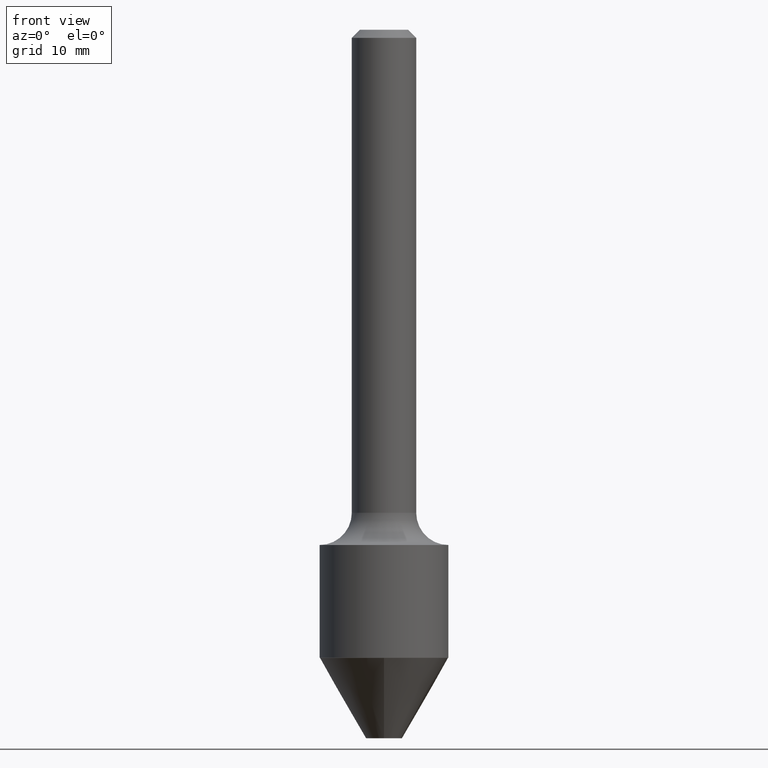
[diagram: clean part render]
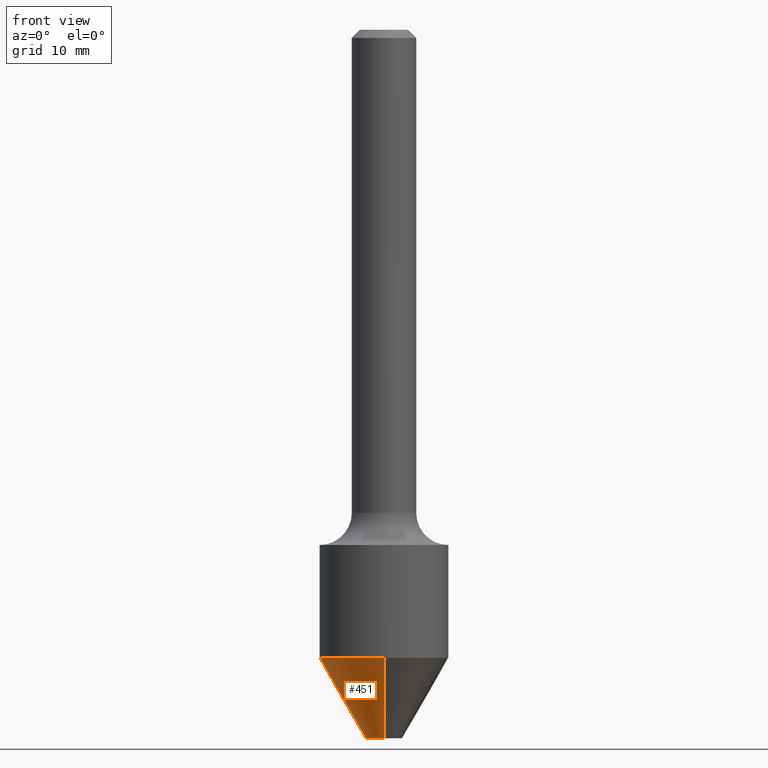
[diagram: same view with one face highlighted and labeled with its STEP entity id]
A machine part, front view. The second image highlights one B-rep face of the part: STEP entity #451.
In plain terms, the highlighted conical surface has half-angle 30 deg.
Its self-contained STEP definition (entity closure, byte-faithful):
#18 = DIRECTION ( 'NONE',  ( -6.982962677686265922E-15, -1.000000000000000000, 0.000000000000000000 ) ) ;
#29 = VERTEX_POINT ( 'NONE', #447 ) ;
#32 = AXIS2_PLACEMENT_3D ( 'NONE', #200, #165, #325 ) ;
#42 = ORIENTED_EDGE ( 'NONE', *, *, #225, .F. ) ;
#51 = VECTOR ( 'NONE', #320, 39.37007874015748143 ) ;
#65 = LINE ( 'NONE', #497, #297 ) ;
#68 = VERTEX_POINT ( 'NONE', #478 ) ;
#71 = ORIENTED_EDGE ( 'NONE', *, *, #112, .T. ) ;
#72 = EDGE_CURVE ( 'NONE', #29, #471, #162, .T. ) ;
#112 = EDGE_CURVE ( 'NONE', #68, #29, #467, .T. ) ;
#119 = FACE_OUTER_BOUND ( 'NONE', #228, .T. ) ;
#137 = DIRECTION ( 'NONE',  ( 3.552713678800711555E-15, 0.5000000000000357492, 0.8660254037844178354 ) ) ;
#152 = EDGE_CURVE ( 'NONE', #191, #471, #222, .T. ) ;
#162 = LINE ( 'NONE', #248, #51 ) ;
#165 = DIRECTION ( 'NONE',  ( -2.534660151122198642E-29, 3.363754256437179045E-15, 1.000000000000000000 ) ) ;
#191 = VERTEX_POINT ( 'NONE', #428 ) ;
#200 = CARTESIAN_POINT ( 'NONE',  ( 5.940771760591224886E-29, -8.544321867099997850E-15, -2.438230854637630785 ) ) ;
#216 = CARTESIAN_POINT ( 'NONE',  ( 5.940771760591224886E-29, -8.544321867099997850E-15, -2.438230854637630785 ) ) ;
#222 = CIRCLE ( 'NONE', #402, 0.2499999999999996947 ) ;
#225 = EDGE_CURVE ( 'NONE', #68, #191, #65, .T. ) ;
#228 = EDGE_LOOP ( 'NONE', ( #42, #71, #300, #404 ) ) ;
#240 = AXIS2_PLACEMENT_3D ( 'NONE', #385, #262, #18 ) ;
#248 = CARTESIAN_POINT ( 'NONE',  ( -1.745740669421504752E-15, -0.2500000000000082157, -2.438230854637629896 ) ) ;
#257 = CONICAL_SURFACE ( 'NONE', #32, 0.2499999999999996947, 0.5235987755983368963 ) ;
#258 = DIRECTION ( 'NONE',  ( -2.534660151122198642E-29, 3.363754256437179045E-15, 1.000000000000000000 ) ) ;
#262 = DIRECTION ( 'NONE',  ( -2.534660151122198642E-29, 3.363754256437179045E-15, 1.000000000000000000 ) ) ;
#283 = CARTESIAN_POINT ( 'NONE',  ( -1.745740669421504752E-15, -0.2500000000000082157, -2.438230854637629896 ) ) ;
#297 = VECTOR ( 'NONE', #137, 39.37007874015748854 ) ;
#300 = ORIENTED_EDGE ( 'NONE', *, *, #72, .T. ) ;
#320 = DIRECTION ( 'NONE',  ( -3.491481338843385002E-15, -0.5000000000000300870, 0.8660254037844212771 ) ) ;
#325 = DIRECTION ( 'NONE',  ( -6.982962677686265922E-15, -1.000000000000000000, 3.278217592397119806E-15 ) ) ;
#385 = CARTESIAN_POINT ( 'NONE',  ( 6.731000589690648611E-29, -9.593036656838451372E-15, -2.750000000000000444 ) ) ;
#402 = AXIS2_PLACEMENT_3D ( 'NONE', #216, #258, #463 ) ;
#404 = ORIENTED_EDGE ( 'NONE', *, *, #152, .F. ) ;
#428 = CARTESIAN_POINT ( 'NONE',  ( 1.776356839400307657E-15, 0.2499999999999911460, -2.438230854637631673 ) ) ;
#447 = CARTESIAN_POINT ( 'NONE',  ( -4.888073874379716954E-16, -0.07000000000000966560, -2.750000000000000444 ) ) ;
#451 = ADVANCED_FACE ( 'NONE', ( #119 ), #257, .T. ) ;
#463 = DIRECTION ( 'NONE',  ( -6.982962677686265922E-15, -1.000000000000000000, 3.278217592397119806E-15 ) ) ;
#467 = CIRCLE ( 'NONE', #240, 0.07000000000000006217 ) ;
#471 = VERTEX_POINT ( 'NONE', #283 ) ;
#478 = CARTESIAN_POINT ( 'NONE',  ( 1.136868377216223233E-15, 0.06999999999999047262, -2.750000000000000444 ) ) ;
#497 = CARTESIAN_POINT ( 'NONE',  ( 1.776356839400307657E-15, 0.2499999999999911460, -2.438230854637631673 ) ) ;